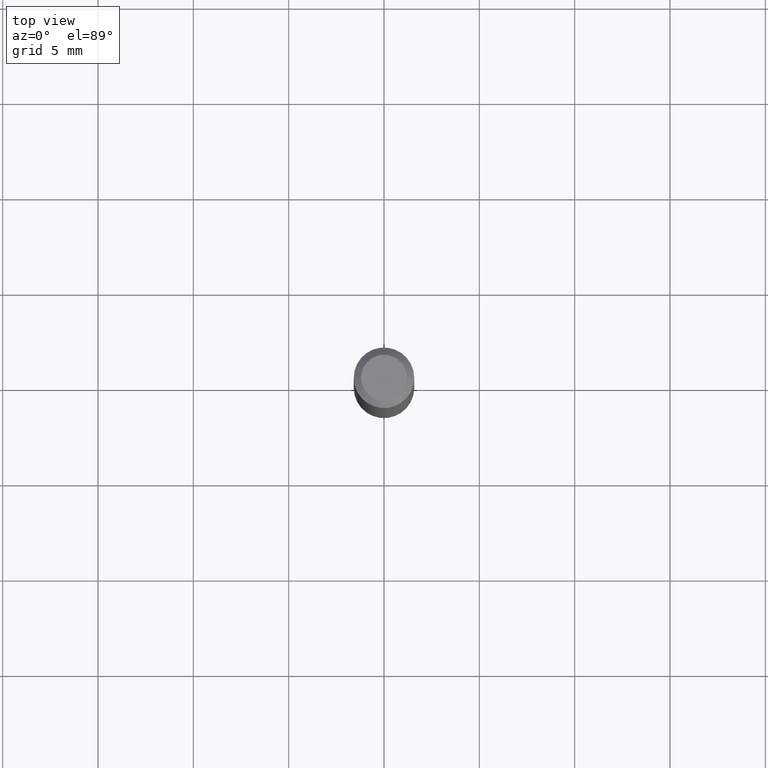
[diagram: clean part render]
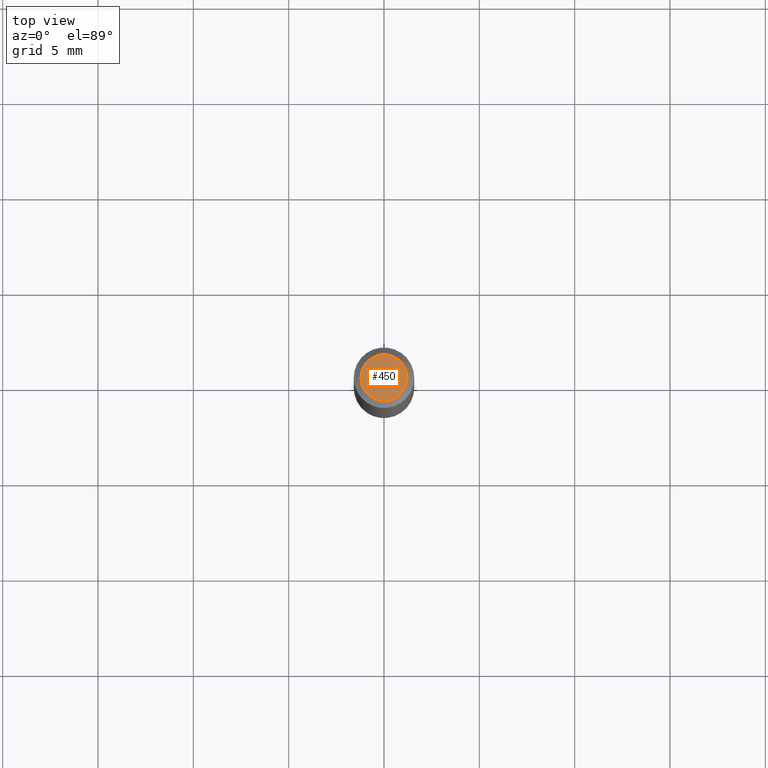
[diagram: same view with one face highlighted and labeled with its STEP entity id]
A machine part, top view. The second image highlights one B-rep face of the part: STEP entity #450.
In plain terms, the highlighted planar face has unit normal (0, -0, -1).
Its self-contained STEP definition (entity closure, byte-faithful):
#13 = CARTESIAN_POINT ( 'NONE',  ( 3.316907271900976096E-16, 0.04749999999999999362, -4.881874950129340235E-17 ) ) ;
#17 = DIRECTION ( 'NONE',  ( -1.000000000000000000, 6.982962677686265922E-15, -4.876176775795935793E-29 ) ) ;
#33 = CARTESIAN_POINT ( 'NONE',  ( 0.04749999999999999362, -4.035134999187574186E-16, 2.340532281875146013E-16 ) ) ;
#50 = ORIENTED_EDGE ( 'NONE', *, *, #262, .T. ) ;
#55 = EDGE_CURVE ( 'NONE', #185, #231, #418, .T. ) ;
#65 = FACE_OUTER_BOUND ( 'NONE', #392, .T. ) ;
#68 = CARTESIAN_POINT ( 'NONE',  ( -0.04749999999999999362, 3.578768372314215436E-16, 2.340532281875096216E-16 ) ) ;
#75 = DIRECTION ( 'NONE',  ( -2.445468806185136597E-29, 3.491481338843145583E-15, 1.000000000000000000 ) ) ;
#92 = ORIENTED_EDGE ( 'NONE', *, *, #55, .T. ) ;
#109 = CIRCLE ( 'NONE', #276, 0.04749999999999999362 ) ;
#122 = CARTESIAN_POINT ( 'NONE',  ( -5.723698685194923234E-45, 8.171924785126947293E-31, 2.340532281875119882E-16 ) ) ;
#143 = AXIS2_PLACEMENT_3D ( 'NONE', #122, #191, #332 ) ;
#185 = VERTEX_POINT ( 'NONE', #33 ) ;
#191 = DIRECTION ( 'NONE',  ( -2.445468806185136597E-29, 3.491481338843145583E-15, 1.000000000000000000 ) ) ;
#204 = AXIS2_PLACEMENT_3D ( 'NONE', #13, #444, #17 ) ;
#208 = PLANE ( 'NONE',  #204 ) ;
#231 = VERTEX_POINT ( 'NONE', #68 ) ;
#262 = EDGE_CURVE ( 'NONE', #231, #185, #109, .T. ) ;
#276 = AXIS2_PLACEMENT_3D ( 'NONE', #349, #75, #391 ) ;
#332 = DIRECTION ( 'NONE',  ( 1.000000000000000000, -6.982962677686267499E-15, 4.852736867747366768E-29 ) ) ;
#349 = CARTESIAN_POINT ( 'NONE',  ( -5.723698685194923234E-45, 8.171924785126947293E-31, 2.340532281875119882E-16 ) ) ;
#391 = DIRECTION ( 'NONE',  ( 1.000000000000000000, -6.982962677686267499E-15, 4.852736867747366768E-29 ) ) ;
#392 = EDGE_LOOP ( 'NONE', ( #50, #92 ) ) ;
#418 = CIRCLE ( 'NONE', #143, 0.04749999999999999362 ) ;
#444 = DIRECTION ( 'NONE',  ( 2.438088387897960049E-29, -3.491481338843145188E-15, -1.000000000000000000 ) ) ;
#450 = ADVANCED_FACE ( 'NONE', ( #65 ), #208, .F. ) ;